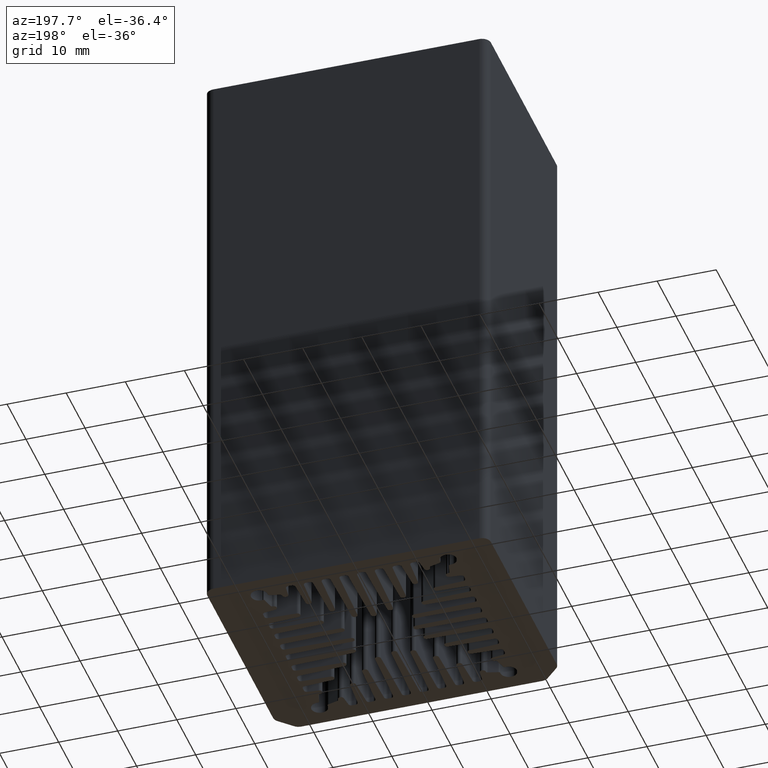
[diagram: clean part render]
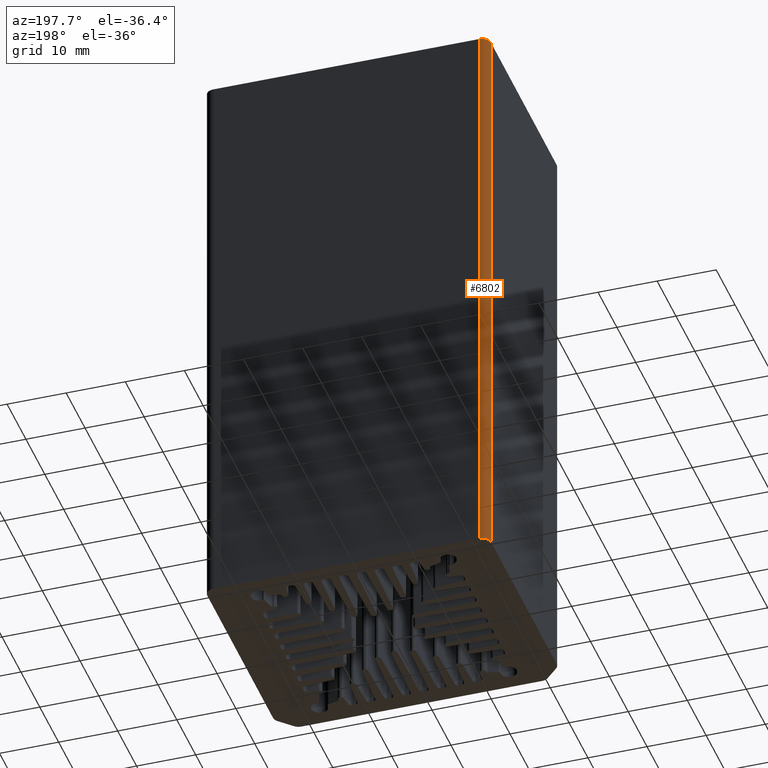
[diagram: same view with one face highlighted and labeled with its STEP entity id]
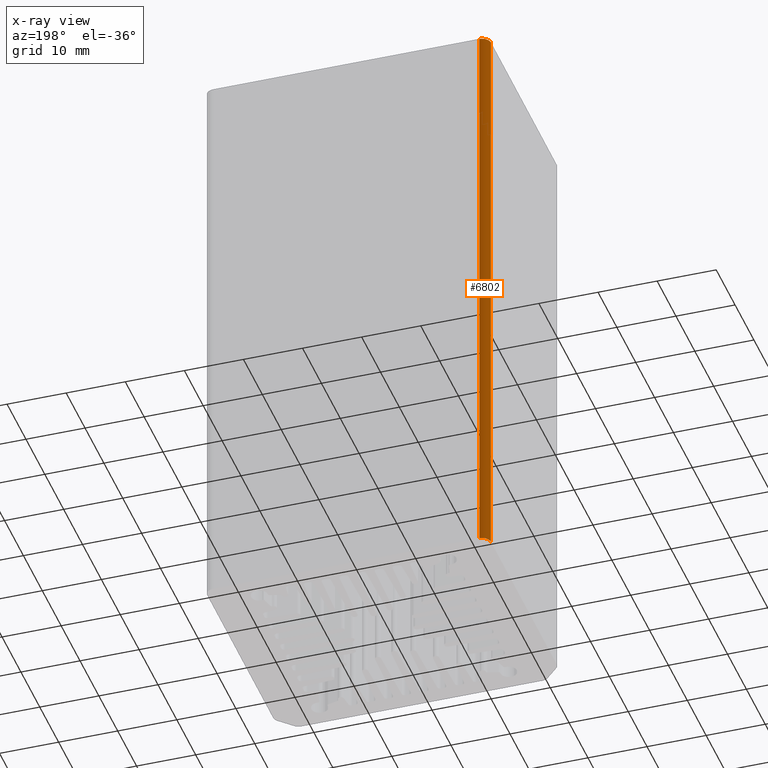
[diagram: x-ray of the same camera — body ghosted, the highlighted face saturated]
A machine part, auxiliary view. The second image highlights one B-rep face of the part: STEP entity #6802.
The next image is the same camera in x-ray: the body ghosted, the highlighted face saturated — about 0% of this face is hidden behind the body in this view.
In plain terms, the highlighted cylindrical surface (edge-blend (fillet) strip) has radius 1.5 mm, axis along (-0, -0, -1).
Its self-contained STEP definition (entity closure, byte-faithful):
#221 = CIRCLE ( 'NONE', #9007, 1.499999631439929981 ) ;
#272 = VERTEX_POINT ( 'NONE', #6865 ) ;
#686 = DIRECTION ( 'NONE',  ( 1.000000000000000000, 0.000000000000000000, 0.000000000000000000 ) ) ;
#834 = VECTOR ( 'NONE', #8977, 1000.000000000000000 ) ;
#1152 = CARTESIAN_POINT ( 'NONE',  ( 499.2959767672336966, 729.8548243580643202, 100.0000000000000000 ) ) ;
#1247 = EDGE_CURVE ( 'NONE', #1545, #7314, #221, .T. ) ;
#1331 = CARTESIAN_POINT ( 'NONE',  ( 499.2959744710736913, 728.3548247266261342, 100.0000000000000000 ) ) ;
#1545 = VERTEX_POINT ( 'NONE', #6693 ) ;
#2141 = VERTEX_POINT ( 'NONE', #5623 ) ;
#2752 = CARTESIAN_POINT ( 'NONE',  ( 499.2959744710736913, 728.3548247266261342, 0.000000000000000000 ) ) ;
#2974 = AXIS2_PLACEMENT_3D ( 'NONE', #1331, #4240, #6237 ) ;
#3518 = CARTESIAN_POINT ( 'NONE',  ( 497.7959748396338568, 728.3548243899882664, 100.0000000000000000 ) ) ;
#3785 = ORIENTED_EDGE ( 'NONE', *, *, #5579, .T. ) ;
#3856 = ORIENTED_EDGE ( 'NONE', *, *, #8586, .F. ) ;
#3961 = DIRECTION ( 'NONE',  ( -0.000000000000000000, -0.000000000000000000, -1.000000000000000000 ) ) ;
#4240 = DIRECTION ( 'NONE',  ( -0.000000000000000000, -0.000000000000000000, -1.000000000000000000 ) ) ;
#4271 = CARTESIAN_POINT ( 'NONE',  ( 497.7959748396338568, 728.3548243899882664, 0.000000000000000000 ) ) ;
#4448 = DIRECTION ( 'NONE',  ( 1.000000000000000000, 0.000000000000000000, 0.000000000000000000 ) ) ;
#5099 = CIRCLE ( 'NONE', #5382, 1.499999631439929981 ) ;
#5261 = ORIENTED_EDGE ( 'NONE', *, *, #8707, .F. ) ;
#5382 = AXIS2_PLACEMENT_3D ( 'NONE', #5724, #5820, #4448 ) ;
#5579 = EDGE_CURVE ( 'NONE', #272, #1545, #8912, .T. ) ;
#5601 = FACE_OUTER_BOUND ( 'NONE', #6091, .T. ) ;
#5623 = CARTESIAN_POINT ( 'NONE',  ( 497.7959748396338568, 728.3548243899882664, 100.0000000000000000 ) ) ;
#5724 = CARTESIAN_POINT ( 'NONE',  ( 499.2959744710736913, 728.3548247266261342, 100.0000000000000000 ) ) ;
#5820 = DIRECTION ( 'NONE',  ( 0.000000000000000000, 0.000000000000000000, 1.000000000000000000 ) ) ;
#5940 = ORIENTED_EDGE ( 'NONE', *, *, #1247, .T. ) ;
#6091 = EDGE_LOOP ( 'NONE', ( #5940, #3856, #5261, #3785 ) ) ;
#6237 = DIRECTION ( 'NONE',  ( -1.000000000000000000, 0.000000000000000000, 0.000000000000000000 ) ) ;
#6693 = CARTESIAN_POINT ( 'NONE',  ( 499.2959767672336966, 729.8548243580643202, 0.000000000000000000 ) ) ;
#6802 = ADVANCED_FACE ( 'NONE', ( #5601 ), #8392, .T. ) ;
#6865 = CARTESIAN_POINT ( 'NONE',  ( 499.2959767672336966, 729.8548243580643202, 100.0000000000000000 ) ) ;
#7314 = VERTEX_POINT ( 'NONE', #4271 ) ;
#7564 = LINE ( 'NONE', #3518, #834 ) ;
#8010 = VECTOR ( 'NONE', #3961, 1000.000000000000000 ) ;
#8392 = CYLINDRICAL_SURFACE ( 'NONE', #2974, 1.499999631439929981 ) ;
#8586 = EDGE_CURVE ( 'NONE', #2141, #7314, #7564, .T. ) ;
#8707 = EDGE_CURVE ( 'NONE', #272, #2141, #5099, .T. ) ;
#8912 = LINE ( 'NONE', #1152, #8010 ) ;
#8947 = DIRECTION ( 'NONE',  ( 0.000000000000000000, 0.000000000000000000, 1.000000000000000000 ) ) ;
#8977 = DIRECTION ( 'NONE',  ( -0.000000000000000000, -0.000000000000000000, -1.000000000000000000 ) ) ;
#9007 = AXIS2_PLACEMENT_3D ( 'NONE', #2752, #8947, #686 ) ;